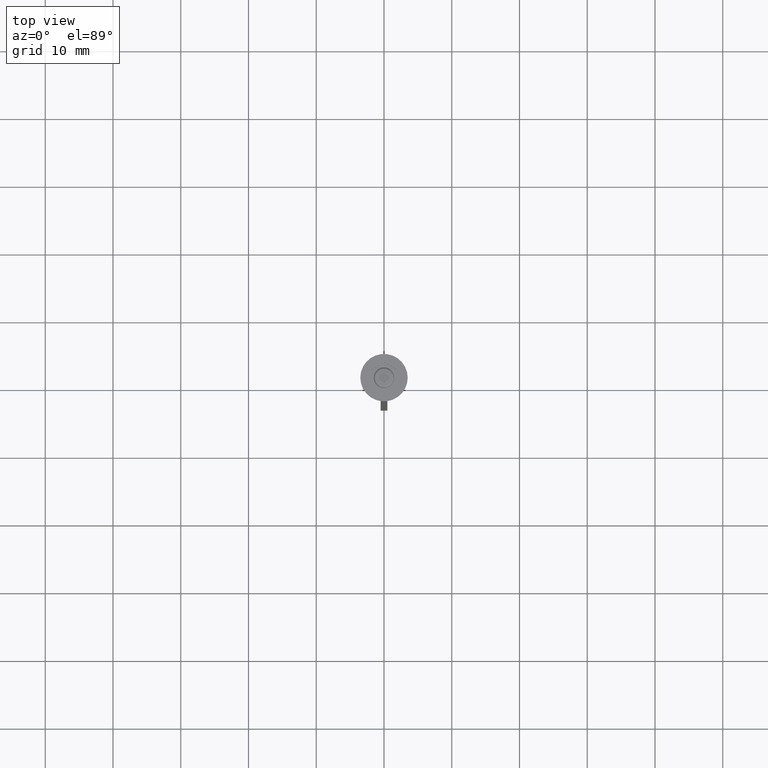
[diagram: clean part render]
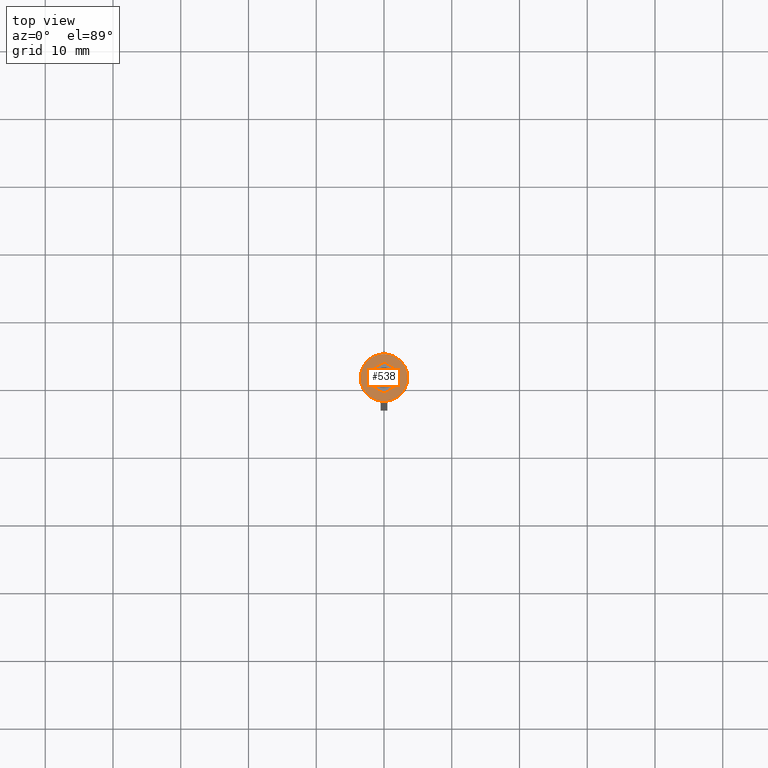
[diagram: same view with one face highlighted and labeled with its STEP entity id]
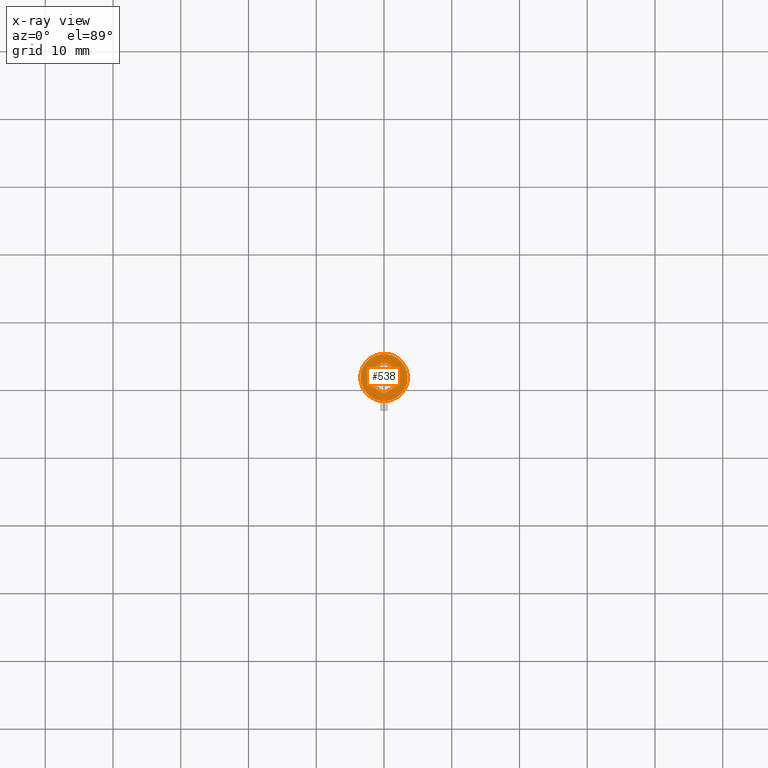
[diagram: x-ray of the same camera — body ghosted, the highlighted face saturated]
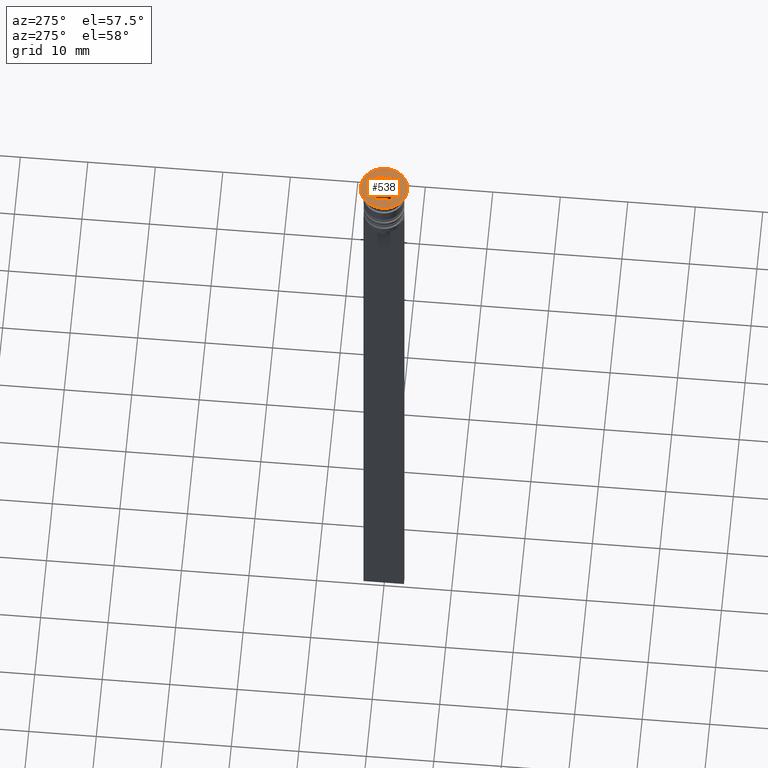
[diagram: same view with one face highlighted and labeled with its STEP entity id]
A machine part, top view. The second image highlights one B-rep face of the part: STEP entity #538.
The next image is the same camera in x-ray: the body ghosted, the highlighted face saturated — about 0% of this face is hidden behind the body in this view.
A second angle (auxiliary view) of the same face is appended — the face is thin or edge-on in the first view.
In plain terms, the highlighted planar face has unit normal (0, -0, 1).
Its self-contained STEP definition (entity closure, byte-faithful):
#21 = ORIENTED_EDGE ( 'NONE', *, *, #336, .F. ) ;
#90 = DIRECTION ( 'NONE',  ( 0.000000000000000000, -0.000000000000000000, 1.000000000000000000 ) ) ;
#93 = VECTOR ( 'NONE', #1125, 1000.000000000000000 ) ;
#158 = LINE ( 'NONE', #1605, #334 ) ;
#194 = PLANE ( 'NONE',  #2241 ) ;
#210 = CIRCLE ( 'NONE', #2103, 3.500000000000000000 ) ;
#244 = CARTESIAN_POINT ( 'NONE',  ( 0.000000000000000000, 2.309401076758502480, 0.000000000000000000 ) ) ;
#295 = LINE ( 'NONE', #1678, #2131 ) ;
#328 = CARTESIAN_POINT ( 'NONE',  ( -3.500000000000000000, 4.286263797015736595E-16, 0.000000000000000000 ) ) ;
#334 = VECTOR ( 'NONE', #1288, 1000.000000000000114 ) ;
#336 = EDGE_CURVE ( 'NONE', #426, #1098, #1775, .T. ) ;
#348 = CARTESIAN_POINT ( 'NONE',  ( 2.000000000000000000, -1.154700538379251684, 0.000000000000000000 ) ) ;
#414 = VERTEX_POINT ( 'NONE', #328 ) ;
#426 = VERTEX_POINT ( 'NONE', #1579 ) ;
#466 = CARTESIAN_POINT ( 'NONE',  ( 0.000000000000000000, 0.000000000000000000, 0.000000000000000000 ) ) ;
#473 = CARTESIAN_POINT ( 'NONE',  ( -2.168404344971008868E-16, 2.309401076758502480, 0.000000000000000000 ) ) ;
#483 = VECTOR ( 'NONE', #1949, 1000.000000000000000 ) ;
#538 = ADVANCED_FACE ( 'NONE', ( #1097, #1810 ), #194, .T. ) ;
#623 = LINE ( 'NONE', #766, #93 ) ;
#685 = DIRECTION ( 'NONE',  ( -0.000000000000000000, -0.000000000000000000, 1.000000000000000000 ) ) ;
#744 = EDGE_CURVE ( 'NONE', #860, #2206, #1840, .T. ) ;
#747 = EDGE_CURVE ( 'NONE', #2206, #1833, #623, .T. ) ;
#766 = CARTESIAN_POINT ( 'NONE',  ( -2.000000000000000000, 1.154700538379251018, 0.000000000000000000 ) ) ;
#802 = DIRECTION ( 'NONE',  ( 0.8660254037844384856, 0.5000000000000001110, 0.000000000000000000 ) ) ;
#843 = CARTESIAN_POINT ( 'NONE',  ( 0.000000000000000000, 0.000000000000000000, 0.000000000000000000 ) ) ;
#859 = DIRECTION ( 'NONE',  ( 0.000000000000000000, 1.000000000000000000, 0.000000000000000000 ) ) ;
#860 = VERTEX_POINT ( 'NONE', #473 ) ;
#878 = CARTESIAN_POINT ( 'NONE',  ( 3.500000000000000000, 0.000000000000000000, 0.000000000000000000 ) ) ;
#885 = ORIENTED_EDGE ( 'NONE', *, *, #747, .F. ) ;
#911 = EDGE_CURVE ( 'NONE', #414, #1005, #1938, .T. ) ;
#912 = CARTESIAN_POINT ( 'NONE',  ( 2.000000000000000000, 1.154700538379251240, 0.000000000000000000 ) ) ;
#932 = VECTOR ( 'NONE', #2186, 1000.000000000000000 ) ;
#1005 = VERTEX_POINT ( 'NONE', #878 ) ;
#1048 = CARTESIAN_POINT ( 'NONE',  ( 3.997386383800531884E-16, -2.309401076758503368, 0.000000000000000000 ) ) ;
#1056 = EDGE_CURVE ( 'NONE', #1098, #860, #1410, .T. ) ;
#1097 = FACE_BOUND ( 'NONE', #1955, .T. ) ;
#1098 = VERTEX_POINT ( 'NONE', #1305 ) ;
#1125 = DIRECTION ( 'NONE',  ( 0.000000000000000000, -1.000000000000000000, 0.000000000000000000 ) ) ;
#1144 = VECTOR ( 'NONE', #859, 1000.000000000000000 ) ;
#1194 = CARTESIAN_POINT ( 'NONE',  ( -2.000000000000000000, 1.154700538379251018, 0.000000000000000000 ) ) ;
#1288 = DIRECTION ( 'NONE',  ( 0.8660254037844387076, -0.4999999999999997780, 0.000000000000000000 ) ) ;
#1305 = CARTESIAN_POINT ( 'NONE',  ( 2.000000000000000000, 1.154700538379251240, 0.000000000000000000 ) ) ;
#1328 = EDGE_CURVE ( 'NONE', #1969, #426, #295, .T. ) ;
#1335 = DIRECTION ( 'NONE',  ( 1.000000000000000000, 0.000000000000000000, 0.000000000000000000 ) ) ;
#1369 = DIRECTION ( 'NONE',  ( 1.000000000000000000, 0.000000000000000000, 0.000000000000000000 ) ) ;
#1410 = LINE ( 'NONE', #912, #483 ) ;
#1554 = ORIENTED_EDGE ( 'NONE', *, *, #1740, .F. ) ;
#1579 = CARTESIAN_POINT ( 'NONE',  ( 2.000000000000000000, -1.154700538379251684, 0.000000000000000000 ) ) ;
#1605 = CARTESIAN_POINT ( 'NONE',  ( -2.000000000000000000, -1.154700538379252128, 0.000000000000000000 ) ) ;
#1678 = CARTESIAN_POINT ( 'NONE',  ( 3.997386383800531884E-16, -2.309401076758503368, 0.000000000000000000 ) ) ;
#1695 = EDGE_LOOP ( 'NONE', ( #2178, #1836 ) ) ;
#1740 = EDGE_CURVE ( 'NONE', #1833, #1969, #158, .T. ) ;
#1775 = LINE ( 'NONE', #348, #1144 ) ;
#1810 = FACE_OUTER_BOUND ( 'NONE', #1695, .T. ) ;
#1826 = CARTESIAN_POINT ( 'NONE',  ( -2.000000000000000000, -1.154700538379252128, 0.000000000000000000 ) ) ;
#1833 = VERTEX_POINT ( 'NONE', #1826 ) ;
#1836 = ORIENTED_EDGE ( 'NONE', *, *, #911, .T. ) ;
#1837 = EDGE_CURVE ( 'NONE', #1005, #414, #210, .T. ) ;
#1840 = LINE ( 'NONE', #244, #932 ) ;
#1864 = AXIS2_PLACEMENT_3D ( 'NONE', #2285, #2264, #1335 ) ;
#1938 = CIRCLE ( 'NONE', #1864, 3.500000000000000000 ) ;
#1949 = DIRECTION ( 'NONE',  ( -0.8660254037844387076, 0.4999999999999998890, 0.000000000000000000 ) ) ;
#1955 = EDGE_LOOP ( 'NONE', ( #2328, #21, #2144, #1554, #885, #1986 ) ) ;
#1969 = VERTEX_POINT ( 'NONE', #1048 ) ;
#1986 = ORIENTED_EDGE ( 'NONE', *, *, #744, .F. ) ;
#2068 = DIRECTION ( 'NONE',  ( 1.000000000000000000, 0.000000000000000000, 0.000000000000000000 ) ) ;
#2103 = AXIS2_PLACEMENT_3D ( 'NONE', #843, #685, #1369 ) ;
#2131 = VECTOR ( 'NONE', #802, 1000.000000000000227 ) ;
#2144 = ORIENTED_EDGE ( 'NONE', *, *, #1328, .F. ) ;
#2178 = ORIENTED_EDGE ( 'NONE', *, *, #1837, .T. ) ;
#2186 = DIRECTION ( 'NONE',  ( -0.8660254037844387076, -0.4999999999999999445, 0.000000000000000000 ) ) ;
#2206 = VERTEX_POINT ( 'NONE', #1194 ) ;
#2241 = AXIS2_PLACEMENT_3D ( 'NONE', #466, #90, #2068 ) ;
#2264 = DIRECTION ( 'NONE',  ( -0.000000000000000000, -0.000000000000000000, 1.000000000000000000 ) ) ;
#2285 = CARTESIAN_POINT ( 'NONE',  ( 0.000000000000000000, 0.000000000000000000, 0.000000000000000000 ) ) ;
#2328 = ORIENTED_EDGE ( 'NONE', *, *, #1056, .F. ) ;